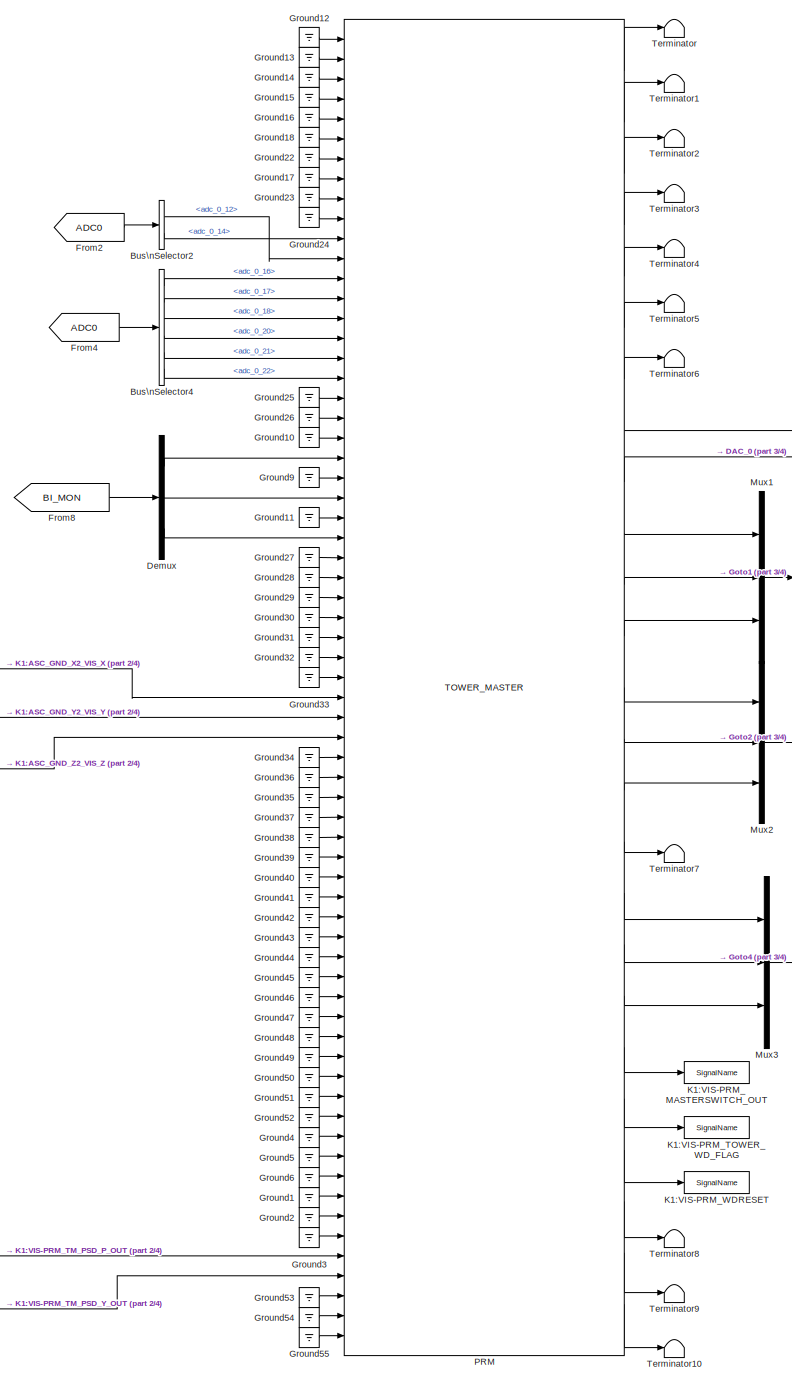
[diagram: root canvas - part 1/4, left side, full height]
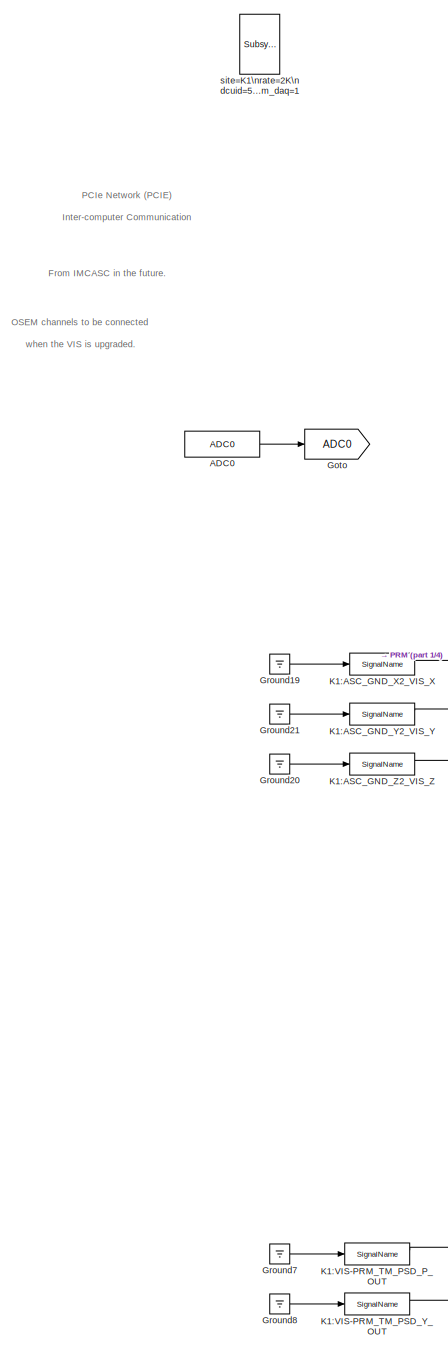
[diagram: root canvas - part 2/4, left side, full height]
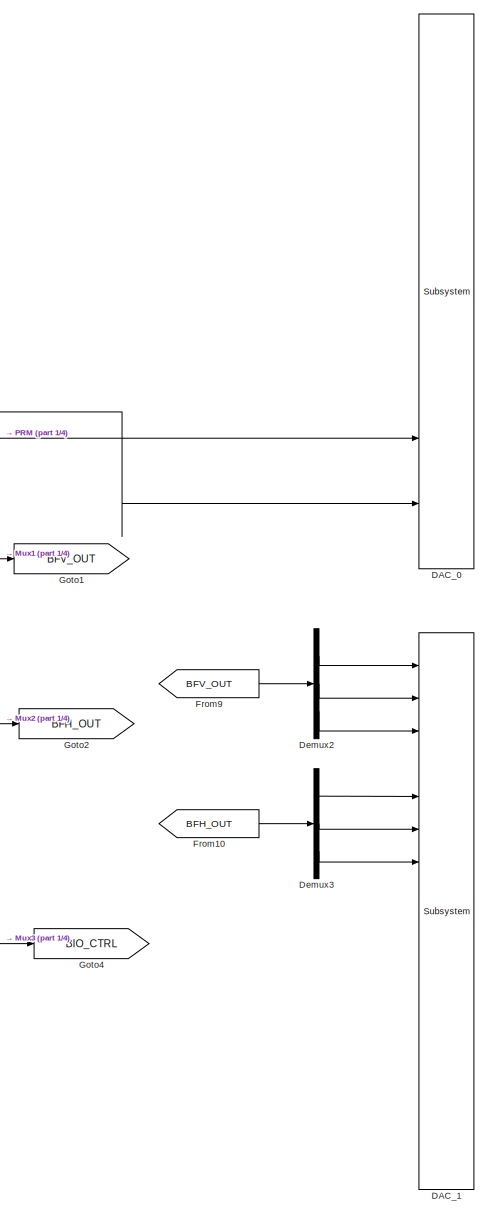
[diagram: root canvas - part 3/4, center side, full height]
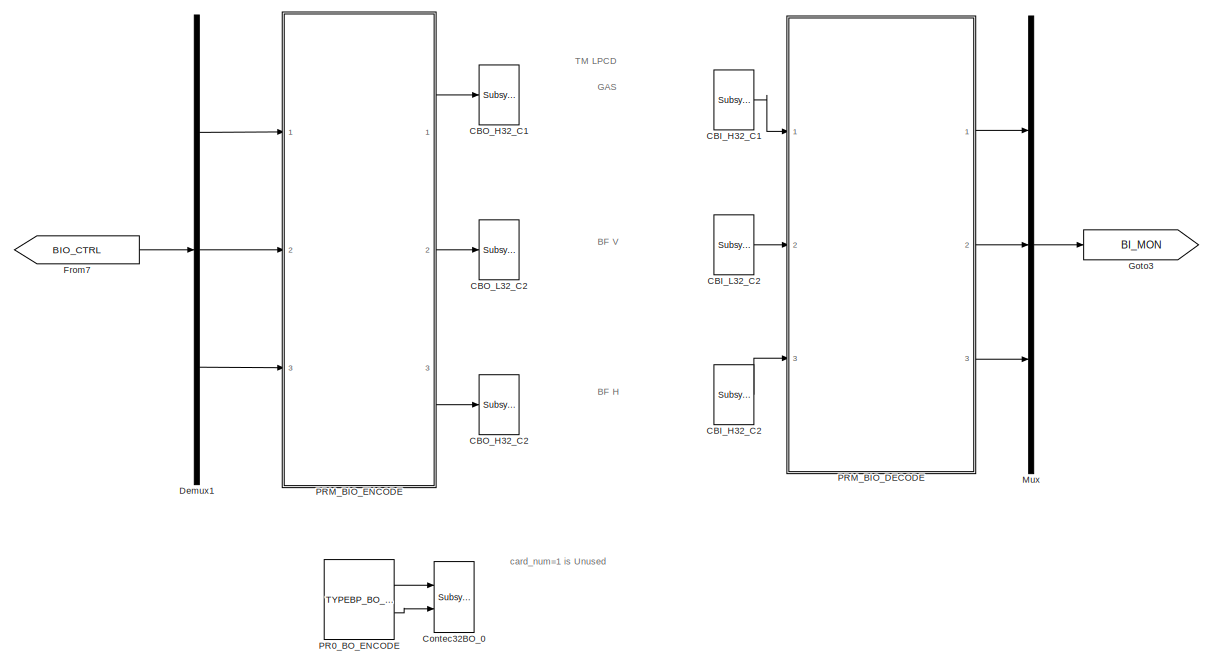
[diagram: root canvas - part 4/4, middle right region]
MODEL k1visprmt
KIND model
BLOCK [Reference] ADC0  REF=cdsAdcx0/ADC0
  AttributesFormatString = %<Description>\\n%<Tag>
  Description = type-GSC_16AI64SSA\ncard_num=0
  Ports = [0, 1]
  SID = 1559
  SourceBlock = cdsAdcx0/ADC0
  SourceType = SubSystem
  Tag = cdsAdc
BLOCK [BusSelector] Bus\nSelector2
  AttributesFormatString = %<Description>
  Description = ADC Selector
  OutputSignals = adc_0_12,adc_0_14
  Ports = [1, 2]
  SID = 1486
BLOCK [BusSelector] Bus\nSelector4
  AttributesFormatString = %<Description>
  Description = ADC Selector
  OutputSignals = adc_0_16,adc_0_17,adc_0_18,adc_0_20,adc_0_21,adc_0_22
  Ports = [1, 6]
  SID = 1488
BLOCK [Reference] CBI_H32_C1  REF=cdsCDI64/Subsystem
  AttributesFormatString = %<Tag>\\n%<Description>
  Description = card_num=3
  Ports = [0, 1]
  SID = 1563
  SourceBlock = cdsCDI64/Subsystem
  SourceType = SubSystem
  Tag = cdsCDI64
BLOCK [Reference] CBI_H32_C2  REF=cdsCDI64/Subsystem
  AttributesFormatString = %<Tag>\\n%<Description>
  Description = card_num=5
  Ports = [0, 1]
  SID = 1564
  SourceBlock = cdsCDI64/Subsystem
  SourceType = SubSystem
  Tag = cdsCDI64
BLOCK [Reference] CBI_L32_C2  REF=cdsCDI64/Subsystem
  AttributesFormatString = %<Tag>\\n%<Description>
  Description = card_num=4
  Ports = [0, 1]
  SID = 1567
  SourceBlock = cdsCDI64/Subsystem
  SourceType = SubSystem
  Tag = cdsCDI64
BLOCK [Reference] CBO_H32_C1  REF=cdsCDO64/Subsystem
  AttributesFormatString = %<Tag>\\n%<Description>
  Description = card_num=3
  Ports = [1]
  SID = 1569
  SourceBlock = cdsCDO64/Subsystem
  SourceType = SubSystem
  Tag = cdsCDO64
BLOCK [Reference] CBO_H32_C2  REF=cdsCDO64/Subsystem
  AttributesFormatString = %<Tag>\\n%<Description>
  Description = card_num=5
  Ports = [1]
  SID = 1570
  SourceBlock = cdsCDO64/Subsystem
  SourceType = SubSystem
  Tag = cdsCDO64
BLOCK [Reference] CBO_L32_C2  REF=cdsCDO64/Subsystem
  AttributesFormatString = %<Tag>\\n%<Description>
  Description = card_num=4
  Ports = [1]
  SID = 1573
  SourceBlock = cdsCDO64/Subsystem
  SourceType = SubSystem
  Tag = cdsCDO64
BLOCK [Reference] Contec32BO_0  REF=cdsCDO32/Subsystem
  AttributesFormatString = %<Tag>
  Description = Contec32 bit binary output module driver
  Ports = [2]
  SID = 1590
  SourceBlock = cdsCDO32/Subsystem
  SourceType = SubSystem
  Tag = cdsCDO32
BLOCK [Reference] DAC_0  REF=dac/Subsystem  (lib defined in slx_40ef132df75b, slx_b7657ccccc5b, +4 more)
  AttributesFormatString = %<Description>
  Description = type=GSC_16AO16,\ncard_num=0
  Ports = [16]
  SID = 1560
  SourceBlock = dac/Subsystem
  SourceType = SubSystem
BLOCK [Reference] DAC_1  REF=dac/Subsystem  (lib defined in slx_40ef132df75b, slx_b7657ccccc5b, +4 more)
  AttributesFormatString = %<Description>
  Description = type=GSC_16AO16,\ncard_num=1
  Ports = [16]
  SID = 1561
  SourceBlock = dac/Subsystem
  SourceType = SubSystem
BLOCK [Demux] Demux
  DisplayOption = bar
  Outputs = 3
  Ports = [1, 3]
  SID = 1491
BLOCK [Demux] Demux1
  DisplayOption = bar
  Outputs = 3
  Ports = [1, 3]
  SID = 1121
BLOCK [Demux] Demux2
  DisplayOption = bar
  Outputs = 3
  Ports = [1, 3]
  SID = 759
BLOCK [Demux] Demux3
  DisplayOption = bar
  Outputs = 3
  Ports = [1, 3]
  SID = 760
BLOCK [From] From10
  GotoTag = BFH_OUT
  SID = 762
BLOCK [From] From2
  GotoTag = ADC0
  SID = 1531
BLOCK [From] From4
  GotoTag = ADC0
  SID = 1533
BLOCK [From] From7
  GotoTag = BIO_CTRL
  SID = 1122
BLOCK [From] From8
  GotoTag = BI_MON
  SID = 1498
BLOCK [From] From9
  GotoTag = BFV_OUT
  SID = 770
BLOCK [Goto] Goto
  GotoTag = ADC0
  SID = 1499
BLOCK [Goto] Goto1
  GotoTag = BFV_OUT
  SID = 771
BLOCK [Goto] Goto2
  GotoTag = BFH_OUT
  SID = 772
BLOCK [Goto] Goto3
  GotoTag = BI_MON
  SID = 1123
BLOCK [Goto] Goto4
  GotoTag = BIO_CTRL
  SID = 774
BLOCK [Ground] Ground1
  SID = 2393
BLOCK [Ground] Ground10
  SID = 1501
BLOCK [Ground] Ground11
  SID = 1502
BLOCK [Ground] Ground12
  SID = 2405
BLOCK [Ground] Ground13
  SID = 2406
BLOCK [Ground] Ground14
  SID = 2407
BLOCK [Ground] Ground15
  SID = 2408
BLOCK [Ground] Ground16
  SID = 2409
BLOCK [Ground] Ground17
  SID = 2414
BLOCK [Ground] Ground18
  SID = 2410
BLOCK [Ground] Ground19
  SID = 1585
BLOCK [Ground] Ground2
  SID = 2394
BLOCK [Ground] Ground20
  SID = 1586
BLOCK [Ground] Ground21
  SID = 1587
BLOCK [Ground] Ground22
  SID = 2411
BLOCK [Ground] Ground23
  SID = 2412
BLOCK [Ground] Ground24
  SID = 2413
BLOCK [Ground] Ground25
  SID = 2415
BLOCK [Ground] Ground26
  SID = 2416
BLOCK [Ground] Ground27
  SID = 2417
BLOCK [Ground] Ground28
  SID = 2418
BLOCK [Ground] Ground29
  SID = 2419
BLOCK [Ground] Ground3
  SID = 2395
BLOCK [Ground] Ground30
  SID = 2420
BLOCK [Ground] Ground31
  SID = 2421
BLOCK [Ground] Ground32
  SID = 2422
BLOCK [Ground] Ground33
  SID = 2423
BLOCK [Ground] Ground34
  SID = 2424
BLOCK [Ground] Ground35
  SID = 2425
BLOCK [Ground] Ground36
  SID = 2426
BLOCK [Ground] Ground37
  SID = 2427
BLOCK [Ground] Ground38
  SID = 2428
BLOCK [Ground] Ground39
  SID = 2429
BLOCK [Ground] Ground4
  SID = 2396
BLOCK [Ground] Ground40
  SID = 2430
BLOCK [Ground] Ground41
  SID = 2431
BLOCK [Ground] Ground42
  SID = 2432
BLOCK [Ground] Ground43
  SID = 2433
BLOCK [Ground] Ground44
  SID = 2434
BLOCK [Ground] Ground45
  SID = 2435
BLOCK [Ground] Ground46
  SID = 2436
BLOCK [Ground] Ground47
  SID = 2437
BLOCK [Ground] Ground48
  SID = 2438
BLOCK [Ground] Ground49
  SID = 2439
BLOCK [Ground] Ground5
  SID = 2397
BLOCK [Ground] Ground50
  SID = 2440
BLOCK [Ground] Ground51
  SID = 2441
BLOCK [Ground] Ground52
  SID = 2442
BLOCK [Ground] Ground53
  SID = 2451
BLOCK [Ground] Ground54
  SID = 2452
BLOCK [Ground] Ground55
  SID = 2453
BLOCK [Ground] Ground6
  SID = 2398
BLOCK [Ground] Ground7
  SID = 2401
BLOCK [Ground] Ground8
  SID = 2402
BLOCK [Ground] Ground9
  SID = 1510
BLOCK [Reference] K1:ASC_GND_X2_VIS_X  REF=cdsIPCx/SignalName
  AttributesFormatString = %<Tag>
  Description = Inter-Process Communication via PCI Express network.
  Ports = [1, 2]
  SID = 1591
  SourceBlock = cdsIPCx/SignalName
  SourceType = SubSystem
  Tag = cdsIPCx_PCIE
BLOCK [Reference] K1:ASC_GND_Y2_VIS_Y  REF=cdsIPCx/SignalName
  AttributesFormatString = %<Tag>
  Description = Inter-Process Communication via PCI Express network.
  Ports = [1, 2]
  SID = 1592
  SourceBlock = cdsIPCx/SignalName
  SourceType = SubSystem
  Tag = cdsIPCx_PCIE
BLOCK [Reference] K1:ASC_GND_Z2_VIS_Z  REF=cdsIPCx/SignalName
  AttributesFormatString = %<Tag>
  Description = Inter-Process Communication via PCI Express network.
  Ports = [1, 2]
  SID = 1593
  SourceBlock = cdsIPCx/SignalName
  SourceType = SubSystem
  Tag = cdsIPCx_PCIE
BLOCK [Reference] K1:VIS-PRM_MASTERSWITCH_OUT  REF=cdsIPCx/SignalName
  AttributesFormatString = %<Tag>
  Description = Inter-Process Communication via Shared memory.
  Ports = [1, 2]
  SID = 2384
  SourceBlock = cdsIPCx/SignalName
  SourceType = SubSystem
  Tag = cdsIPCx_SHMEM
BLOCK [Reference] K1:VIS-PRM_TM_PSD_P_OUT  REF=cdsIPCx/SignalName
  AttributesFormatString = %<Tag>
  Description = Inter-Process Communication via Shared memory.
  Ports = [1, 2]
  SID = 2399
  SourceBlock = cdsIPCx/SignalName
  SourceType = SubSystem
  Tag = cdsIPCx_SHMEM
BLOCK [Reference] K1:VIS-PRM_TM_PSD_Y_OUT  REF=cdsIPCx/SignalName
  AttributesFormatString = %<Tag>
  Description = Inter-Process Communication via Shared memory.
  Ports = [1, 2]
  SID = 2400
  SourceBlock = cdsIPCx/SignalName
  SourceType = SubSystem
  Tag = cdsIPCx_SHMEM
BLOCK [Reference] K1:VIS-PRM_TOWER_WD_FLAG  REF=cdsIPCx/SignalName
  AttributesFormatString = %<Tag>
  Description = Inter-Process Communication via Shared memory.
  Ports = [1, 2]
  SID = 2386
  SourceBlock = cdsIPCx/SignalName
  SourceType = SubSystem
  Tag = cdsIPCx_SHMEM
BLOCK [Reference] K1:VIS-PRM_WDRESET  REF=cdsIPCx/SignalName
  AttributesFormatString = %<Tag>
  Description = Inter-Process Communication via Shared memory.
  Ports = [1, 2]
  SID = 2385
  SourceBlock = cdsIPCx/SignalName
  SourceType = SubSystem
  Tag = cdsIPCx_SHMEM
BLOCK [Mux] Mux
  DisplayOption = bar
  Inputs = 3
  Ports = [3, 1]
  SID = 1125
BLOCK [Mux] Mux1
  DisplayOption = bar
  Inputs = 3
  Ports = [3, 1]
  SID = 802
BLOCK [Mux] Mux2
  DisplayOption = bar
  Inputs = 3
  Ports = [3, 1]
  SID = 803
BLOCK [Mux] Mux3
  DisplayOption = bar
  Inputs = 3
  Ports = [3, 1]
  SID = 804
BLOCK [Reference] PR0_BO_ENCODE  REF=BO_TYPEBP_MASTER/TYPEBP_BO_ENCODE
  Ports = [0, 2]
  SID = 1594
  SourceBlock = BO_TYPEBP_MASTER/TYPEBP_BO_ENCODE
  SourceType = SubSystem
BLOCK [Reference] PRM  REF=TOWER_MASTER/TOWER_MASTER
  Ports = [66, 25]
  SID = 2404
  SourceBlock = TOWER_MASTER/TOWER_MASTER
  SourceType = SubSystem
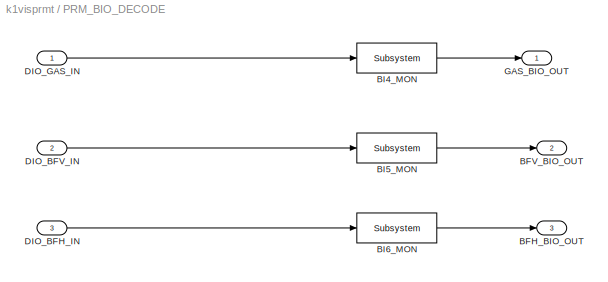
BLOCK [SubSystem] PRM_BIO_DECODE
  Ports = [3, 3]
  RequestExecContextInheritance = off
  SID = 1126
  Variant = off
BLOCK [Outport] PRM_BIO_DECODE/BFH_BIO_OUT
  IconDisplay = Port number
  Port = 3
  SID = 1144
BLOCK [Outport] PRM_BIO_DECODE/BFV_BIO_OUT
  IconDisplay = Port number
  Port = 2
  SID = 1143
BLOCK [Reference] PRM_BIO_DECODE/BI4_MON  REF=cdsEpicsOut/Subsystem
  AttributesFormatString = %<Tag>
  Description = Purpose:                                          \nOutput a FE signal to an EPICS channel.           \n                                                  \nOperation:                                        \nTakes input value and passes it to EPICS record.  \n                                                  \nUsage:                                            \nName the part with the desired EPICS...<+14ch>  <repeated x6 — deduplicated; at blocks: BI4_MON, BI5_MON, BI6_MON, DIO_3_OUT, DIO_4_OUT, DIO_4_OUT1>
  Ports = [1, 1]
  SID = 1136
  SourceBlock = cdsEpicsOut/Subsystem
  SourceType = SubSystem
  Tag = cdsEpicsOutput
BLOCK [Reference] PRM_BIO_DECODE/BI5_MON  REF=cdsEpicsOut/Subsystem
  AttributesFormatString = %<Tag>
  Ports = [1, 1]
  SID = 1137
  SourceBlock = cdsEpicsOut/Subsystem
  SourceType = SubSystem
  Tag = cdsEpicsOutput
BLOCK [Reference] PRM_BIO_DECODE/BI6_MON  REF=cdsEpicsOut/Subsystem
  AttributesFormatString = %<Tag>
  Ports = [1, 1]
  SID = 1138
  SourceBlock = cdsEpicsOut/Subsystem
  SourceType = SubSystem
  Tag = cdsEpicsOutput
BLOCK [Inport] PRM_BIO_DECODE/DIO_BFH_IN
  IconDisplay = Port number
  Port = 3
  SID = 1132
BLOCK [Inport] PRM_BIO_DECODE/DIO_BFV_IN
  IconDisplay = Port number
  Port = 2
  SID = 1131
BLOCK [Inport] PRM_BIO_DECODE/DIO_GAS_IN
  IconDisplay = Port number
  SID = 1130
BLOCK [Outport] PRM_BIO_DECODE/GAS_BIO_OUT
  IconDisplay = Port number
  SID = 1142
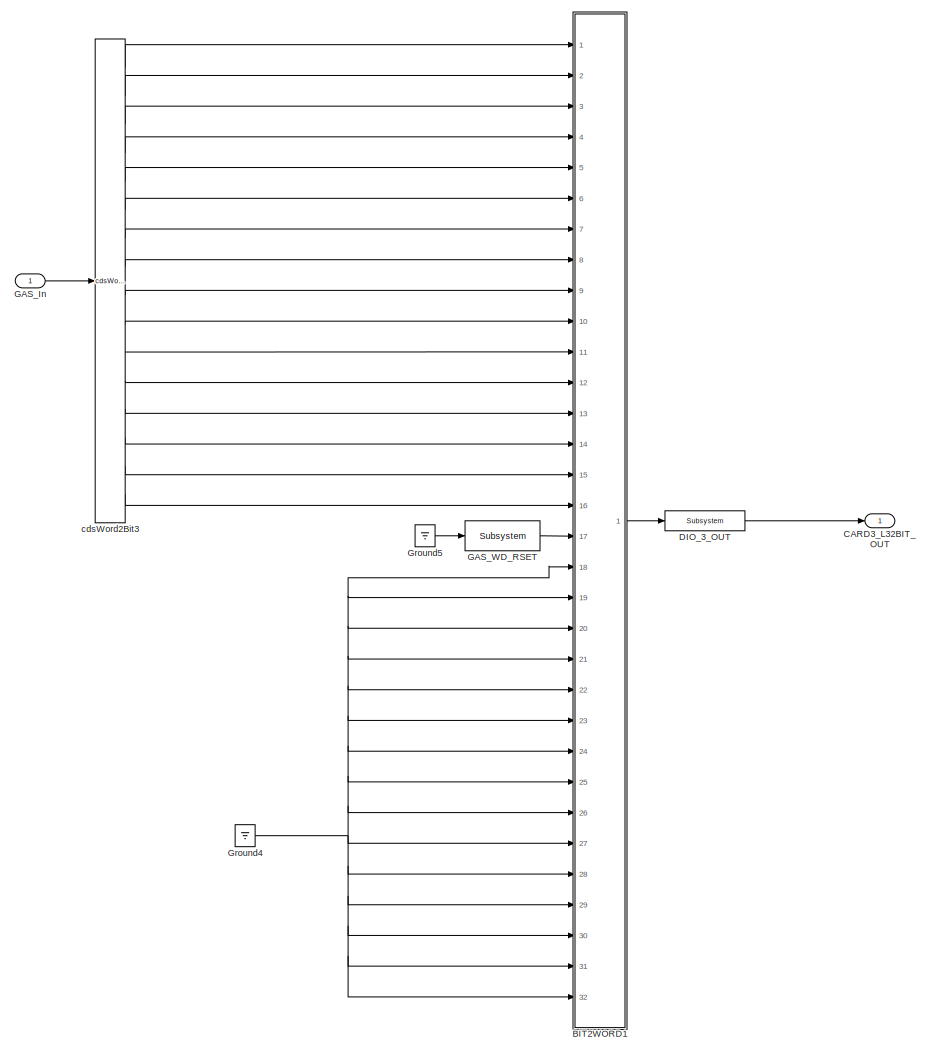
[diagram: PRM_BIO_ENCODE - part 1/3, top right region]
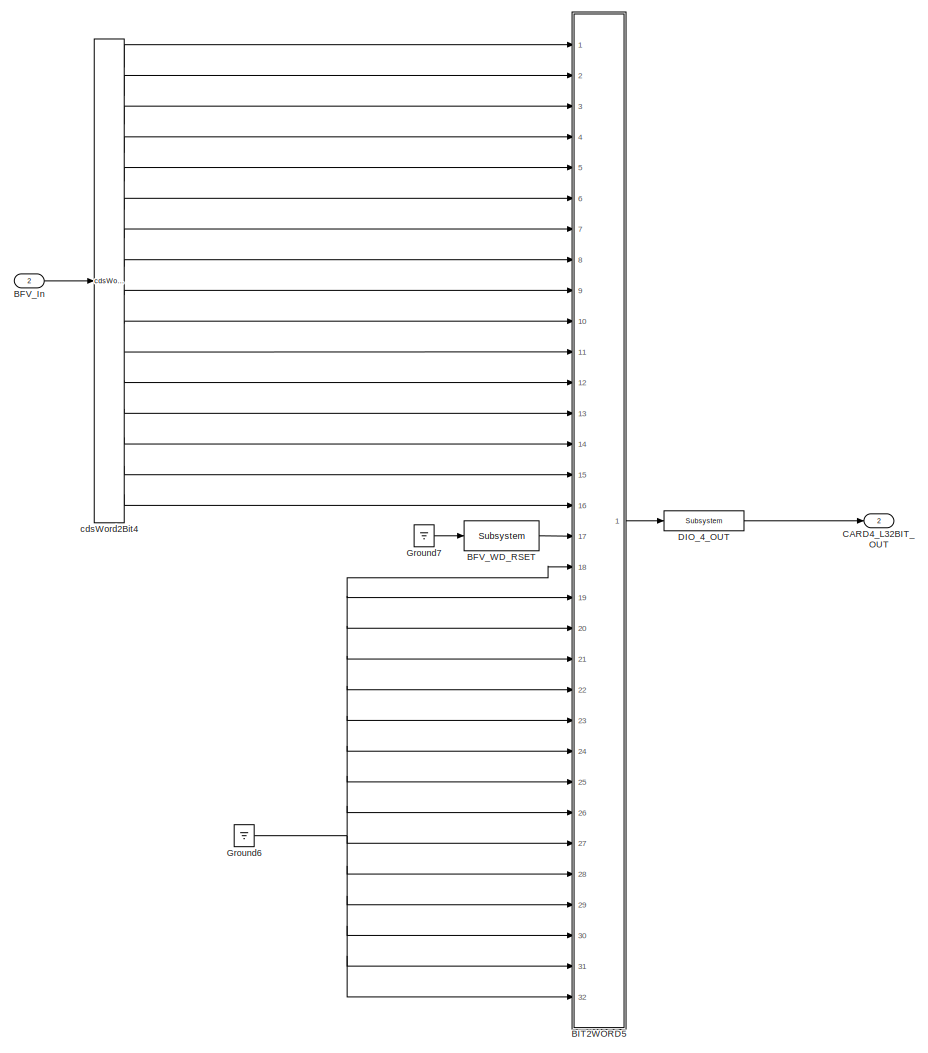
[diagram: PRM_BIO_ENCODE - part 2/3, bottom right region]
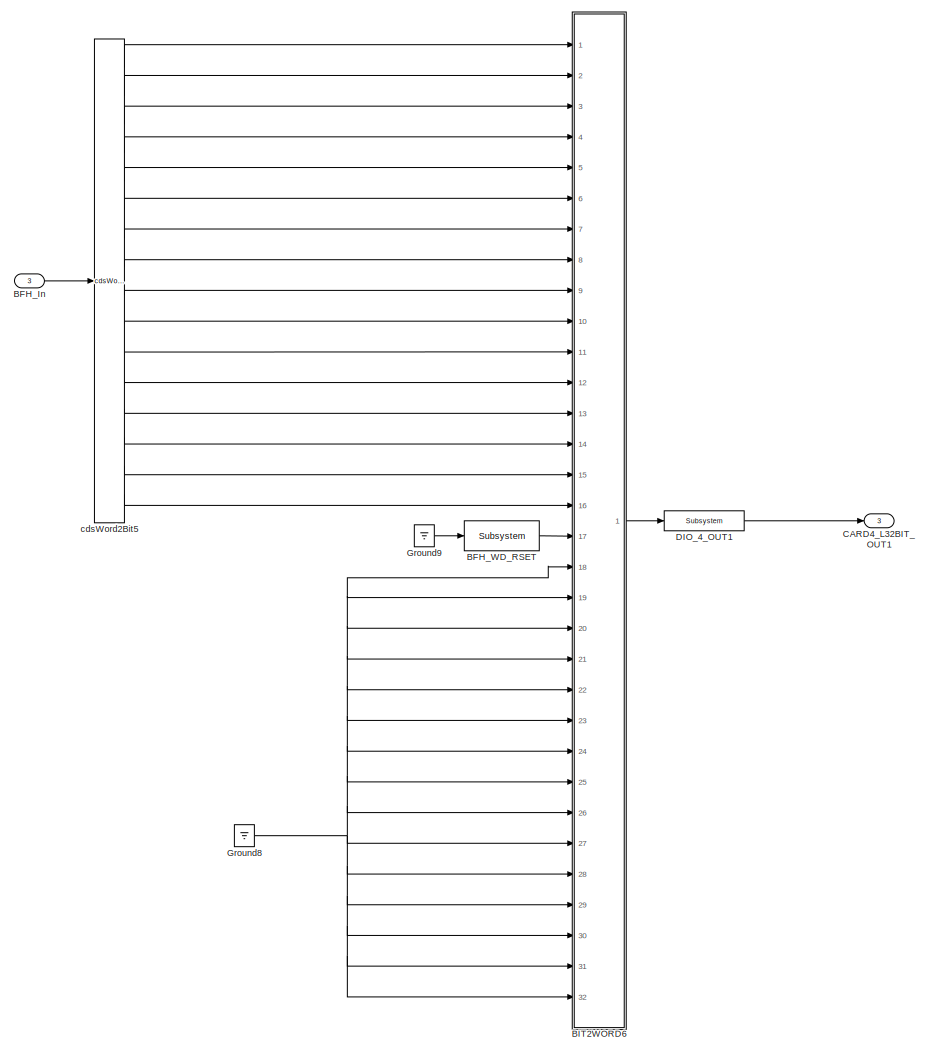
[diagram: PRM_BIO_ENCODE - part 3/3, bottom left region]
BLOCK [SubSystem] PRM_BIO_ENCODE
  Ports = [3, 3]
  RequestExecContextInheritance = off
  SID = 1145
  Variant = off
BLOCK [Inport] PRM_BIO_ENCODE/BFH_In
  IconDisplay = Port number
  Port = 3
  SID = 1151
BLOCK [Reference] PRM_BIO_ENCODE/BFH_WD_RSET  REF=cdsEpicsBinIn/Subsystem
  AttributesFormatString = %<Tag>
  Description = Purpose:                                                                            \nCreate an EPICS binary (0 or 1) input channel to the FE realtime controls.          \n                                                                                    \nOperation:                                                                          \nOutputs value from an EPICS ai record. Value is binary i...<+252ch>  <repeated x3 — deduplicated; at blocks: BFH_WD_RSET, BFV_WD_RSET, GAS_WD_RSET>
  Ports = [1, 1]
  SID = 1152
  SourceBlock = cdsEpicsBinIn/Subsystem
  SourceType = SubSystem
  Tag = cdsEpicsBinIn
BLOCK [Inport] PRM_BIO_ENCODE/BFV_In
  IconDisplay = Port number
  Port = 2
  SID = 1150
BLOCK [Reference] PRM_BIO_ENCODE/BFV_WD_RSET  REF=cdsEpicsBinIn/Subsystem
  AttributesFormatString = %<Tag>
  Ports = [1, 1]
  SID = 1153
  SourceBlock = cdsEpicsBinIn/Subsystem
  SourceType = SubSystem
  Tag = cdsEpicsBinIn
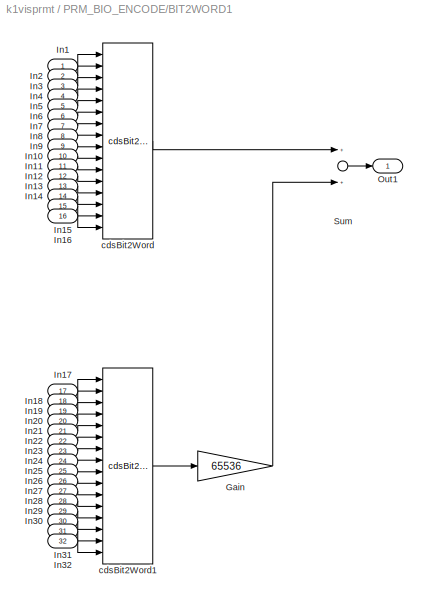
BLOCK [SubSystem] PRM_BIO_ENCODE/BIT2WORD1
  Ports = [32, 1]
  RequestExecContextInheritance = off
  SID = 1154
  Variant = off
BLOCK [Gain] PRM_BIO_ENCODE/BIT2WORD1/Gain
  Gain = 65536
  OutDataTypeStr = Inherit: Inherit via internal rule
  ParamDataTypeStr = Inherit: Inherit via internal rule
  SID = 1187
  SaturateOnIntegerOverflow = off
BLOCK [Inport] PRM_BIO_ENCODE/BIT2WORD1/In1
  IconDisplay = Port number
  SID = 1155
BLOCK [Inport] PRM_BIO_ENCODE/BIT2WORD1/In10
  IconDisplay = Port number
  Port = 10
  SID = 1164
BLOCK [Inport] PRM_BIO_ENCODE/BIT2WORD1/In11
  IconDisplay = Port number
  Port = 11
  SID = 1165
BLOCK [Inport] PRM_BIO_ENCODE/BIT2WORD1/In12
  IconDisplay = Port number
  Port = 12
  SID = 1166
BLOCK [Inport] PRM_BIO_ENCODE/BIT2WORD1/In13
  IconDisplay = Port number
  Port = 13
  SID = 1167
BLOCK [Inport] PRM_BIO_ENCODE/BIT2WORD1/In14
  IconDisplay = Port number
  Port = 14
  SID = 1168
BLOCK [Inport] PRM_BIO_ENCODE/BIT2WORD1/In15
  IconDisplay = Port number
  Port = 15
  SID = 1169
BLOCK [Inport] PRM_BIO_ENCODE/BIT2WORD1/In16
  IconDisplay = Port number
  Port = 16
  SID = 1170
BLOCK [Inport] PRM_BIO_ENCODE/BIT2WORD1/In17
  IconDisplay = Port number
  Port = 17
  SID = 1171
BLOCK [Inport] PRM_BIO_ENCODE/BIT2WORD1/In18
  IconDisplay = Port number
  Port = 18
  SID = 1172
BLOCK [Inport] PRM_BIO_ENCODE/BIT2WORD1/In19
  IconDisplay = Port number
  Port = 19
  SID = 1173
BLOCK [Inport] PRM_BIO_ENCODE/BIT2WORD1/In2
  IconDisplay = Port number
  Port = 2
  SID = 1156
BLOCK [Inport] PRM_BIO_ENCODE/BIT2WORD1/In20
  IconDisplay = Port number
  Port = 20
  SID = 1174
BLOCK [Inport] PRM_BIO_ENCODE/BIT2WORD1/In21
  IconDisplay = Port number
  Port = 21
  SID = 1175
BLOCK [Inport] PRM_BIO_ENCODE/BIT2WORD1/In22
  IconDisplay = Port number
  Port = 22
  SID = 1176
BLOCK [Inport] PRM_BIO_ENCODE/BIT2WORD1/In23
  IconDisplay = Port number
  Port = 23
  SID = 1177
BLOCK [Inport] PRM_BIO_ENCODE/BIT2WORD1/In24
  IconDisplay = Port number
  Port = 24
  SID = 1178
BLOCK [Inport] PRM_BIO_ENCODE/BIT2WORD1/In25
  IconDisplay = Port number
  Port = 25
  SID = 1179
BLOCK [Inport] PRM_BIO_ENCODE/BIT2WORD1/In26
  IconDisplay = Port number
  Port = 26
  SID = 1180
BLOCK [Inport] PRM_BIO_ENCODE/BIT2WORD1/In27
  IconDisplay = Port number
  Port = 27
  SID = 1181
BLOCK [Inport] PRM_BIO_ENCODE/BIT2WORD1/In28
  IconDisplay = Port number
  Port = 28
  SID = 1182
BLOCK [Inport] PRM_BIO_ENCODE/BIT2WORD1/In29
  IconDisplay = Port number
  Port = 29
  SID = 1183
BLOCK [Inport] PRM_BIO_ENCODE/BIT2WORD1/In3
  IconDisplay = Port number
  Port = 3
  SID = 1157
BLOCK [Inport] PRM_BIO_ENCODE/BIT2WORD1/In30
  IconDisplay = Port number
  Port = 30
  SID = 1184
BLOCK [Inport] PRM_BIO_ENCODE/BIT2WORD1/In31
  IconDisplay = Port number
  Port = 31
  SID = 1185
BLOCK [Inport] PRM_BIO_ENCODE/BIT2WORD1/In32
  IconDisplay = Port number
  Port = 32
  SID = 1186
BLOCK [Inport] PRM_BIO_ENCODE/BIT2WORD1/In4
  IconDisplay = Port number
  Port = 4
  SID = 1158
BLOCK [Inport] PRM_BIO_ENCODE/BIT2WORD1/In5
  IconDisplay = Port number
  Port = 5
  SID = 1159
BLOCK [Inport] PRM_BIO_ENCODE/BIT2WORD1/In6
  IconDisplay = Port number
  Port = 6
  SID = 1160
BLOCK [Inport] PRM_BIO_ENCODE/BIT2WORD1/In7
  IconDisplay = Port number
  Port = 7
  SID = 1161
BLOCK [Inport] PRM_BIO_ENCODE/BIT2WORD1/In8
  IconDisplay = Port number
  Port = 8
  SID = 1162
BLOCK [Inport] PRM_BIO_ENCODE/BIT2WORD1/In9
  IconDisplay = Port number
  Port = 9
  SID = 1163
BLOCK [Outport] PRM_BIO_ENCODE/BIT2WORD1/Out1
  IconDisplay = Port number
  SID = 1191
BLOCK [Sum] PRM_BIO_ENCODE/BIT2WORD1/Sum
  InputSameDT = off
  OutDataTypeStr = Inherit: Inherit via internal rule
  Ports = [2, 1]
  SID = 1188
  SaturateOnIntegerOverflow = off
BLOCK [Reference] PRM_BIO_ENCODE/BIT2WORD1/cdsBit2Word  REF=cdsBit2Word/cdsBit2Word
  AttributesFormatString = %<Tag>
  Description = Forms single 16 bit integer from 16 0/1 inputs.
  Ports = [16, 1]
  SID = 1189
  SourceBlock = cdsBit2Word/cdsBit2Word
  SourceType = SubSystem
  Tag = cdsBit2Word
BLOCK [Reference] PRM_BIO_ENCODE/BIT2WORD1/cdsBit2Word1  REF=cdsBit2Word/cdsBit2Word
  AttributesFormatString = %<Tag>
  Description = Forms single 16 bit integer from 16 0/1 inputs.
  Ports = [16, 1]
  SID = 1190
  SourceBlock = cdsBit2Word/cdsBit2Word
  SourceType = SubSystem
  Tag = cdsBit2Word
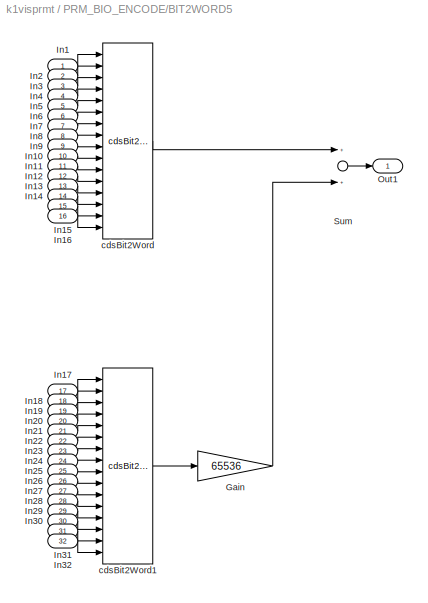
BLOCK [SubSystem] PRM_BIO_ENCODE/BIT2WORD5
  Ports = [32, 1]
  RequestExecContextInheritance = off
  SID = 1306
  Variant = off
BLOCK [Gain] PRM_BIO_ENCODE/BIT2WORD5/Gain
  Gain = 65536
  OutDataTypeStr = Inherit: Inherit via internal rule
  ParamDataTypeStr = Inherit: Inherit via internal rule
  SID = 1339
  SaturateOnIntegerOverflow = off
BLOCK [Inport] PRM_BIO_ENCODE/BIT2WORD5/In1
  IconDisplay = Port number
  SID = 1307
BLOCK [Inport] PRM_BIO_ENCODE/BIT2WORD5/In10
  IconDisplay = Port number
  Port = 10
  SID = 1316
BLOCK [Inport] PRM_BIO_ENCODE/BIT2WORD5/In11
  IconDisplay = Port number
  Port = 11
  SID = 1317
BLOCK [Inport] PRM_BIO_ENCODE/BIT2WORD5/In12
  IconDisplay = Port number
  Port = 12
  SID = 1318
BLOCK [Inport] PRM_BIO_ENCODE/BIT2WORD5/In13
  IconDisplay = Port number
  Port = 13
  SID = 1319
BLOCK [Inport] PRM_BIO_ENCODE/BIT2WORD5/In14
  IconDisplay = Port number
  Port = 14
  SID = 1320
BLOCK [Inport] PRM_BIO_ENCODE/BIT2WORD5/In15
  IconDisplay = Port number
  Port = 15
  SID = 1321
BLOCK [Inport] PRM_BIO_ENCODE/BIT2WORD5/In16
  IconDisplay = Port number
  Port = 16
  SID = 1322
BLOCK [Inport] PRM_BIO_ENCODE/BIT2WORD5/In17
  IconDisplay = Port number
  Port = 17
  SID = 1323
BLOCK [Inport] PRM_BIO_ENCODE/BIT2WORD5/In18
  IconDisplay = Port number
  Port = 18
  SID = 1324
BLOCK [Inport] PRM_BIO_ENCODE/BIT2WORD5/In19
  IconDisplay = Port number
  Port = 19
  SID = 1325
BLOCK [Inport] PRM_BIO_ENCODE/BIT2WORD5/In2
  IconDisplay = Port number
  Port = 2
  SID = 1308
BLOCK [Inport] PRM_BIO_ENCODE/BIT2WORD5/In20
  IconDisplay = Port number
  Port = 20
  SID = 1326
BLOCK [Inport] PRM_BIO_ENCODE/BIT2WORD5/In21
  IconDisplay = Port number
  Port = 21
  SID = 1327
BLOCK [Inport] PRM_BIO_ENCODE/BIT2WORD5/In22
  IconDisplay = Port number
  Port = 22
  SID = 1328
BLOCK [Inport] PRM_BIO_ENCODE/BIT2WORD5/In23
  IconDisplay = Port number
  Port = 23
  SID = 1329
BLOCK [Inport] PRM_BIO_ENCODE/BIT2WORD5/In24
  IconDisplay = Port number
  Port = 24
  SID = 1330
BLOCK [Inport] PRM_BIO_ENCODE/BIT2WORD5/In25
  IconDisplay = Port number
  Port = 25
  SID = 1331
BLOCK [Inport] PRM_BIO_ENCODE/BIT2WORD5/In26
  IconDisplay = Port number
  Port = 26
  SID = 1332
BLOCK [Inport] PRM_BIO_ENCODE/BIT2WORD5/In27
  IconDisplay = Port number
  Port = 27
  SID = 1333
BLOCK [Inport] PRM_BIO_ENCODE/BIT2WORD5/In28
  IconDisplay = Port number
  Port = 28
  SID = 1334
BLOCK [Inport] PRM_BIO_ENCODE/BIT2WORD5/In29
  IconDisplay = Port number
  Port = 29
  SID = 1335
BLOCK [Inport] PRM_BIO_ENCODE/BIT2WORD5/In3
  IconDisplay = Port number
  Port = 3
  SID = 1309
BLOCK [Inport] PRM_BIO_ENCODE/BIT2WORD5/In30
  IconDisplay = Port number
  Port = 30
  SID = 1336
BLOCK [Inport] PRM_BIO_ENCODE/BIT2WORD5/In31
  IconDisplay = Port number
  Port = 31
  SID = 1337
BLOCK [Inport] PRM_BIO_ENCODE/BIT2WORD5/In32
  IconDisplay = Port number
  Port = 32
  SID = 1338
BLOCK [Inport] PRM_BIO_ENCODE/BIT2WORD5/In4
  IconDisplay = Port number
  Port = 4
  SID = 1310
BLOCK [Inport] PRM_BIO_ENCODE/BIT2WORD5/In5
  IconDisplay = Port number
  Port = 5
  SID = 1311
BLOCK [Inport] PRM_BIO_ENCODE/BIT2WORD5/In6
  IconDisplay = Port number
  Port = 6
  SID = 1312
BLOCK [Inport] PRM_BIO_ENCODE/BIT2WORD5/In7
  IconDisplay = Port number
  Port = 7
  SID = 1313
BLOCK [Inport] PRM_BIO_ENCODE/BIT2WORD5/In8
  IconDisplay = Port number
  Port = 8
  SID = 1314
BLOCK [Inport] PRM_BIO_ENCODE/BIT2WORD5/In9
  IconDisplay = Port number
  Port = 9
  SID = 1315
BLOCK [Outport] PRM_BIO_ENCODE/BIT2WORD5/Out1
  IconDisplay = Port number
  SID = 1343
BLOCK [Sum] PRM_BIO_ENCODE/BIT2WORD5/Sum
  InputSameDT = off
  OutDataTypeStr = Inherit: Inherit via internal rule
  Ports = [2, 1]
  SID = 1340
  SaturateOnIntegerOverflow = off
BLOCK [Reference] PRM_BIO_ENCODE/BIT2WORD5/cdsBit2Word  REF=cdsBit2Word/cdsBit2Word
  AttributesFormatString = %<Tag>
  Description = Forms single 16 bit integer from 16 0/1 inputs.
  Ports = [16, 1]
  SID = 1341
  SourceBlock = cdsBit2Word/cdsBit2Word
  SourceType = SubSystem
  Tag = cdsBit2Word
BLOCK [Reference] PRM_BIO_ENCODE/BIT2WORD5/cdsBit2Word1  REF=cdsBit2Word/cdsBit2Word
  AttributesFormatString = %<Tag>
  Description = Forms single 16 bit integer from 16 0/1 inputs.
  Ports = [16, 1]
  SID = 1342
  SourceBlock = cdsBit2Word/cdsBit2Word
  SourceType = SubSystem
  Tag = cdsBit2Word
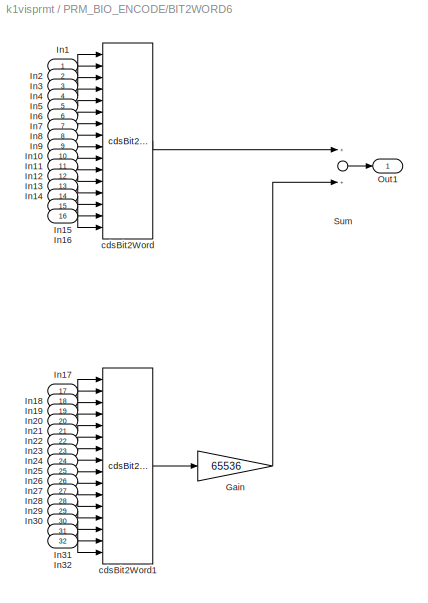
BLOCK [SubSystem] PRM_BIO_ENCODE/BIT2WORD6
  Ports = [32, 1]
  RequestExecContextInheritance = off
  SID = 1344
  Variant = off
BLOCK [Gain] PRM_BIO_ENCODE/BIT2WORD6/Gain
  Gain = 65536
  OutDataTypeStr = Inherit: Inherit via internal rule
  ParamDataTypeStr = Inherit: Inherit via internal rule
  SID = 1377
  SaturateOnIntegerOverflow = off
BLOCK [Inport] PRM_BIO_ENCODE/BIT2WORD6/In1
  IconDisplay = Port number
  SID = 1345
BLOCK [Inport] PRM_BIO_ENCODE/BIT2WORD6/In10
  IconDisplay = Port number
  Port = 10
  SID = 1354
BLOCK [Inport] PRM_BIO_ENCODE/BIT2WORD6/In11
  IconDisplay = Port number
  Port = 11
  SID = 1355
BLOCK [Inport] PRM_BIO_ENCODE/BIT2WORD6/In12
  IconDisplay = Port number
  Port = 12
  SID = 1356
BLOCK [Inport] PRM_BIO_ENCODE/BIT2WORD6/In13
  IconDisplay = Port number
  Port = 13
  SID = 1357
BLOCK [Inport] PRM_BIO_ENCODE/BIT2WORD6/In14
  IconDisplay = Port number
  Port = 14
  SID = 1358
BLOCK [Inport] PRM_BIO_ENCODE/BIT2WORD6/In15
  IconDisplay = Port number
  Port = 15
  SID = 1359
BLOCK [Inport] PRM_BIO_ENCODE/BIT2WORD6/In16
  IconDisplay = Port number
  Port = 16
  SID = 1360
BLOCK [Inport] PRM_BIO_ENCODE/BIT2WORD6/In17
  IconDisplay = Port number
  Port = 17
  SID = 1361
BLOCK [Inport] PRM_BIO_ENCODE/BIT2WORD6/In18
  IconDisplay = Port number
  Port = 18
  SID = 1362
BLOCK [Inport] PRM_BIO_ENCODE/BIT2WORD6/In19
  IconDisplay = Port number
  Port = 19
  SID = 1363
BLOCK [Inport] PRM_BIO_ENCODE/BIT2WORD6/In2
  IconDisplay = Port number
  Port = 2
  SID = 1346
BLOCK [Inport] PRM_BIO_ENCODE/BIT2WORD6/In20
  IconDisplay = Port number
  Port = 20
  SID = 1364
BLOCK [Inport] PRM_BIO_ENCODE/BIT2WORD6/In21
  IconDisplay = Port number
  Port = 21
  SID = 1365
BLOCK [Inport] PRM_BIO_ENCODE/BIT2WORD6/In22
  IconDisplay = Port number
  Port = 22
  SID = 1366
BLOCK [Inport] PRM_BIO_ENCODE/BIT2WORD6/In23
  IconDisplay = Port number
  Port = 23
  SID = 1367
BLOCK [Inport] PRM_BIO_ENCODE/BIT2WORD6/In24
  IconDisplay = Port number
  Port = 24
  SID = 1368
BLOCK [Inport] PRM_BIO_ENCODE/BIT2WORD6/In25
  IconDisplay = Port number
  Port = 25
  SID = 1369
BLOCK [Inport] PRM_BIO_ENCODE/BIT2WORD6/In26
  IconDisplay = Port number
  Port = 26
  SID = 1370
BLOCK [Inport] PRM_BIO_ENCODE/BIT2WORD6/In27
  IconDisplay = Port number
  Port = 27
  SID = 1371
BLOCK [Inport] PRM_BIO_ENCODE/BIT2WORD6/In28
  IconDisplay = Port number
  Port = 28
  SID = 1372
BLOCK [Inport] PRM_BIO_ENCODE/BIT2WORD6/In29
  IconDisplay = Port number
  Port = 29
  SID = 1373
BLOCK [Inport] PRM_BIO_ENCODE/BIT2WORD6/In3
  IconDisplay = Port number
  Port = 3
  SID = 1347
BLOCK [Inport] PRM_BIO_ENCODE/BIT2WORD6/In30
  IconDisplay = Port number
  Port = 30
  SID = 1374
BLOCK [Inport] PRM_BIO_ENCODE/BIT2WORD6/In31
  IconDisplay = Port number
  Port = 31
  SID = 1375
BLOCK [Inport] PRM_BIO_ENCODE/BIT2WORD6/In32
  IconDisplay = Port number
  Port = 32
  SID = 1376
BLOCK [Inport] PRM_BIO_ENCODE/BIT2WORD6/In4
  IconDisplay = Port number
  Port = 4
  SID = 1348
BLOCK [Inport] PRM_BIO_ENCODE/BIT2WORD6/In5
  IconDisplay = Port number
  Port = 5
  SID = 1349
BLOCK [Inport] PRM_BIO_ENCODE/BIT2WORD6/In6
  IconDisplay = Port number
  Port = 6
  SID = 1350
BLOCK [Inport] PRM_BIO_ENCODE/BIT2WORD6/In7
  IconDisplay = Port number
  Port = 7
  SID = 1351
BLOCK [Inport] PRM_BIO_ENCODE/BIT2WORD6/In8
  IconDisplay = Port number
  Port = 8
  SID = 1352
BLOCK [Inport] PRM_BIO_ENCODE/BIT2WORD6/In9
  IconDisplay = Port number
  Port = 9
  SID = 1353
BLOCK [Outport] PRM_BIO_ENCODE/BIT2WORD6/Out1
  IconDisplay = Port number
  SID = 1381
BLOCK [Sum] PRM_BIO_ENCODE/BIT2WORD6/Sum
  InputSameDT = off
  OutDataTypeStr = Inherit: Inherit via internal rule
  Ports = [2, 1]
  SID = 1378
  SaturateOnIntegerOverflow = off
BLOCK [Reference] PRM_BIO_ENCODE/BIT2WORD6/cdsBit2Word  REF=cdsBit2Word/cdsBit2Word
  AttributesFormatString = %<Tag>
  Description = Forms single 16 bit integer from 16 0/1 inputs.
  Ports = [16, 1]
  SID = 1379
  SourceBlock = cdsBit2Word/cdsBit2Word
  SourceType = SubSystem
  Tag = cdsBit2Word
BLOCK [Reference] PRM_BIO_ENCODE/BIT2WORD6/cdsBit2Word1  REF=cdsBit2Word/cdsBit2Word
  AttributesFormatString = %<Tag>
  Description = Forms single 16 bit integer from 16 0/1 inputs.
  Ports = [16, 1]
  SID = 1380
  SourceBlock = cdsBit2Word/cdsBit2Word
  SourceType = SubSystem
  Tag = cdsBit2Word
BLOCK [Outport] PRM_BIO_ENCODE/CARD3_L32BIT_OUT
  IconDisplay = Port number
  SID = 1413
BLOCK [Outport] PRM_BIO_ENCODE/CARD4_L32BIT_OUT
  IconDisplay = Port number
  Port = 2
  SID = 1414
BLOCK [Outport] PRM_BIO_ENCODE/CARD4_L32BIT_OUT1
  IconDisplay = Port number
  Port = 3
  SID = 1415
BLOCK [Reference] PRM_BIO_ENCODE/DIO_3_OUT  REF=cdsEpicsOut/Subsystem
  AttributesFormatString = %<Tag>
  Ports = [1, 1]
  SID = 1385
  SourceBlock = cdsEpicsOut/Subsystem
  SourceType = SubSystem
  Tag = cdsEpicsOutput
BLOCK [Reference] PRM_BIO_ENCODE/DIO_4_OUT  REF=cdsEpicsOut/Subsystem
  AttributesFormatString = %<Tag>
  Ports = [1, 1]
  SID = 1386
  SourceBlock = cdsEpicsOut/Subsystem
  SourceType = SubSystem
  Tag = cdsEpicsOutput
BLOCK [Reference] PRM_BIO_ENCODE/DIO_4_OUT1  REF=cdsEpicsOut/Subsystem
  AttributesFormatString = %<Tag>
  Ports = [1, 1]
  SID = 1387
  SourceBlock = cdsEpicsOut/Subsystem
  SourceType = SubSystem
  Tag = cdsEpicsOutput
BLOCK [Inport] PRM_BIO_ENCODE/GAS_In
  IconDisplay = Port number
  SID = 1149
BLOCK [Reference] PRM_BIO_ENCODE/GAS_WD_RSET  REF=cdsEpicsBinIn/Subsystem
  AttributesFormatString = %<Tag>
  Ports = [1, 1]
  SID = 1388
  SourceBlock = cdsEpicsBinIn/Subsystem
  SourceType = SubSystem
  Tag = cdsEpicsBinIn
BLOCK [Ground] PRM_BIO_ENCODE/Ground4
  SID = 1393
BLOCK [Ground] PRM_BIO_ENCODE/Ground5
  SID = 1394
BLOCK [Ground] PRM_BIO_ENCODE/Ground6
  SID = 1395
BLOCK [Ground] PRM_BIO_ENCODE/Ground7
  SID = 1398
BLOCK [Ground] PRM_BIO_ENCODE/Ground8
  SID = 1399
BLOCK [Ground] PRM_BIO_ENCODE/Ground9
  SID = 1400
BLOCK [Reference] PRM_BIO_ENCODE/cdsWord2Bit3  REF=cdsWord2Bit/cdsWord2Bit
  AttributesFormatString = cdsWord2Bit
  Description = Generate 16 0/1 outputs from single 16-bit integer input
  Ports = [1, 16]
  SID = 1407
  SourceBlock = cdsWord2Bit/cdsWord2Bit
  SourceType = SubSystem
  Tag = cdsWord2Bit
BLOCK [Reference] PRM_BIO_ENCODE/cdsWord2Bit4  REF=cdsWord2Bit/cdsWord2Bit
  AttributesFormatString = cdsWord2Bit
  Description = Generate 16 0/1 outputs from single 16-bit integer input
  Ports = [1, 16]
  SID = 1408
  SourceBlock = cdsWord2Bit/cdsWord2Bit
  SourceType = SubSystem
  Tag = cdsWord2Bit
BLOCK [Reference] PRM_BIO_ENCODE/cdsWord2Bit5  REF=cdsWord2Bit/cdsWord2Bit
  AttributesFormatString = cdsWord2Bit
  Description = Generate 16 0/1 outputs from single 16-bit integer input
  Ports = [1, 16]
  SID = 1409
  SourceBlock = cdsWord2Bit/cdsWord2Bit
  SourceType = SubSystem
  Tag = cdsWord2Bit
BLOCK [Terminator] Terminator
  SID = 2443
BLOCK [Terminator] Terminator1
  SID = 2444
BLOCK [Terminator] Terminator10
  SID = 2456
BLOCK [Terminator] Terminator2
  SID = 2445
BLOCK [Terminator] Terminator3
  SID = 2446
BLOCK [Terminator] Terminator4
  SID = 2447
BLOCK [Terminator] Terminator5
  SID = 2448
BLOCK [Terminator] Terminator6
  SID = 2449
BLOCK [Terminator] Terminator7
  SID = 2450
BLOCK [Terminator] Terminator8
  SID = 2454
BLOCK [Terminator] Terminator9
  SID = 2455
BLOCK [Reference] site=K1\nrate=2K\ndcuid=55\nhost=k1prm\nspecific_cpu=2\nadcSlave=1\nshmem_daq=1  REF=cdsParameters/Subsystem
  AttributesFormatString = %<Tag>
  Description = Purpose:                                                                                                                                                                                                                                \nProvide system parameters to the FE code generator to properly configure the generated EPICS names, rep rate of the FE controller, and the Data Acquisition node ID fo...<+2934ch>
  Ports = []
  SID = 336
  SourceBlock = cdsParameters/Subsystem
  SourceType = SubSystem
  Tag = cdsParameters
ANNOTATION (root): \n \n TM LPCD
ANNOTATION (root): \n \n card_num=1 is Unused
ANNOTATION (root): \n \n GAS
ANNOTATION (root): \n \n BF H
ANNOTATION (root): \n \n BF V
ANNOTATION (root): \n \n From IMCASC in the future.
ANNOTATION (root): \n \n OSEM channels to be connected \n when the VIS is upgraded.
ANNOTATION (root): \n \n PCIe Network (PCIE) \n Inter-computer Communication
LINE ADC0:1 -> Goto:1
LINE Bus\nSelector2:1 -> PRM:12
LINE Bus\nSelector2:2 -> PRM:11
LINE Bus\nSelector4:1 -> PRM:13
LINE Bus\nSelector4:2 -> PRM:14
LINE Bus\nSelector4:3 -> PRM:15
LINE Bus\nSelector4:4 -> PRM:16
LINE Bus\nSelector4:5 -> PRM:17
LINE Bus\nSelector4:6 -> PRM:18
LINE CBI_H32_C1:1 -> PRM_BIO_DECODE:1
LINE CBI_H32_C2:1 -> PRM_BIO_DECODE:3
LINE CBI_L32_C2:1 -> PRM_BIO_DECODE:2
LINE Demux1:1 -> PRM_BIO_ENCODE:1
LINE Demux1:2 -> PRM_BIO_ENCODE:2
LINE Demux1:3 -> PRM_BIO_ENCODE:3
LINE Demux2:1 -> DAC_1:1
LINE Demux2:2 -> DAC_1:2
LINE Demux2:3 -> DAC_1:3
LINE Demux3:1 -> DAC_1:5
LINE Demux3:2 -> DAC_1:6
LINE Demux3:3 -> DAC_1:7
LINE Demux:1 -> PRM:22
LINE Demux:2 -> PRM:24
LINE Demux:3 -> PRM:26
LINE From10:1 -> Demux3:1
LINE From2:1 -> Bus\nSelector2:1
LINE From4:1 -> Bus\nSelector4:1
LINE From7:1 -> Demux1:1
LINE From8:1 -> Demux:1
LINE From9:1 -> Demux2:1
LINE Ground10:1 -> PRM:21
LINE Ground11:1 -> PRM:25
LINE Ground12:1 -> PRM:1
LINE Ground13:1 -> PRM:2
LINE Ground14:1 -> PRM:3
LINE Ground15:1 -> PRM:4
LINE Ground16:1 -> PRM:5
LINE Ground17:1 -> PRM:8
LINE Ground18:1 -> PRM:6
LINE Ground19:1 -> K1:ASC_GND_X2_VIS_X:1
LINE Ground1:1 -> PRM:59
LINE Ground20:1 -> K1:ASC_GND_Z2_VIS_Z:1
LINE Ground21:1 -> K1:ASC_GND_Y2_VIS_Y:1
LINE Ground22:1 -> PRM:7
LINE Ground23:1 -> PRM:9
LINE Ground24:1 -> PRM:10
LINE Ground25:1 -> PRM:19
LINE Ground26:1 -> PRM:20
LINE Ground27:1 -> PRM:27
LINE Ground28:1 -> PRM:28
LINE Ground29:1 -> PRM:29
LINE Ground2:1 -> PRM:60
LINE Ground30:1 -> PRM:30
LINE Ground31:1 -> PRM:31
LINE Ground32:1 -> PRM:32
LINE Ground33:1 -> PRM:33
LINE Ground34:1 -> PRM:37
LINE Ground35:1 -> PRM:39
LINE Ground36:1 -> PRM:38
LINE Ground37:1 -> PRM:40
LINE Ground38:1 -> PRM:41
LINE Ground39:1 -> PRM:42
LINE Ground3:1 -> PRM:61
LINE Ground40:1 -> PRM:43
LINE Ground41:1 -> PRM:44
LINE Ground42:1 -> PRM:45
LINE Ground43:1 -> PRM:46
LINE Ground44:1 -> PRM:47
LINE Ground45:1 -> PRM:48
LINE Ground46:1 -> PRM:49
LINE Ground47:1 -> PRM:50
LINE Ground48:1 -> PRM:51
LINE Ground49:1 -> PRM:52
LINE Ground4:1 -> PRM:56
LINE Ground50:1 -> PRM:53
LINE Ground51:1 -> PRM:54
LINE Ground52:1 -> PRM:55
LINE Ground53:1 -> PRM:64
LINE Ground54:1 -> PRM:65
LINE Ground55:1 -> PRM:66
LINE Ground5:1 -> PRM:57
LINE Ground6:1 -> PRM:58
LINE Ground7:1 -> K1:VIS-PRM_TM_PSD_P_OUT:1
LINE Ground8:1 -> K1:VIS-PRM_TM_PSD_Y_OUT:1
LINE Ground9:1 -> PRM:23
LINE K1:ASC_GND_X2_VIS_X:1 -> PRM:34
LINE K1:ASC_GND_Y2_VIS_Y:1 -> PRM:35
LINE K1:ASC_GND_Z2_VIS_Z:1 -> PRM:36
LINE K1:VIS-PRM_TM_PSD_P_OUT:1 -> PRM:62
LINE K1:VIS-PRM_TM_PSD_Y_OUT:1 -> PRM:63
LINE Mux1:1 -> Goto1:1
LINE Mux2:1 -> Goto2:1
LINE Mux3:1 -> Goto4:1
LINE Mux:1 -> Goto3:1
LINE PR0_BO_ENCODE:1 -> Contec32BO_0:1
LINE PR0_BO_ENCODE:2 -> Contec32BO_0:2
LINE PRM:1 -> Terminator:1
LINE PRM:10 -> Mux1:1
LINE PRM:11 -> Mux1:2
LINE PRM:12 -> Mux1:3
LINE PRM:13 -> Mux2:1
LINE PRM:14 -> Mux2:2
LINE PRM:15 -> Mux2:3
LINE PRM:16 -> Terminator7:1
LINE PRM:17 -> Mux3:1
LINE PRM:18 -> Mux3:2
LINE PRM:19 -> Mux3:3
LINE PRM:2 -> Terminator1:1
LINE PRM:20 -> K1:VIS-PRM_MASTERSWITCH_OUT:1
LINE PRM:21 -> K1:VIS-PRM_TOWER_WD_FLAG:1
LINE PRM:22 -> K1:VIS-PRM_WDRESET:1
LINE PRM:23 -> Terminator8:1
LINE PRM:24 -> Terminator9:1
LINE PRM:25 -> Terminator10:1
LINE PRM:3 -> Terminator2:1
LINE PRM:4 -> Terminator3:1
LINE PRM:5 -> Terminator4:1
LINE PRM:6 -> Terminator5:1
LINE PRM:7 -> Terminator6:1
LINE PRM:8 -> DAC_0:15
LINE PRM:9 -> DAC_0:13
LINE PRM_BIO_DECODE/BI4_MON:1 -> PRM_BIO_DECODE/GAS_BIO_OUT:1
LINE PRM_BIO_DECODE/BI5_MON:1 -> PRM_BIO_DECODE/BFV_BIO_OUT:1
LINE PRM_BIO_DECODE/BI6_MON:1 -> PRM_BIO_DECODE/BFH_BIO_OUT:1
LINE PRM_BIO_DECODE/DIO_BFH_IN:1 -> PRM_BIO_DECODE/BI6_MON:1
LINE PRM_BIO_DECODE/DIO_BFV_IN:1 -> PRM_BIO_DECODE/BI5_MON:1
LINE PRM_BIO_DECODE/DIO_GAS_IN:1 -> PRM_BIO_DECODE/BI4_MON:1
LINE PRM_BIO_DECODE:1 -> Mux:1
LINE PRM_BIO_DECODE:2 -> Mux:2
LINE PRM_BIO_DECODE:3 -> Mux:3
LINE PRM_BIO_ENCODE/BFH_In:1 -> PRM_BIO_ENCODE/cdsWord2Bit5:1
LINE PRM_BIO_ENCODE/BFH_WD_RSET:1 -> PRM_BIO_ENCODE/BIT2WORD6:17
LINE PRM_BIO_ENCODE/BFV_In:1 -> PRM_BIO_ENCODE/cdsWord2Bit4:1
LINE PRM_BIO_ENCODE/BFV_WD_RSET:1 -> PRM_BIO_ENCODE/BIT2WORD5:17
LINE PRM_BIO_ENCODE/BIT2WORD1/Gain:1 -> PRM_BIO_ENCODE/BIT2WORD1/Sum:2
LINE PRM_BIO_ENCODE/BIT2WORD1/In10:1 -> PRM_BIO_ENCODE/BIT2WORD1/cdsBit2Word:10
LINE PRM_BIO_ENCODE/BIT2WORD1/In11:1 -> PRM_BIO_ENCODE/BIT2WORD1/cdsBit2Word:11
LINE PRM_BIO_ENCODE/BIT2WORD1/In12:1 -> PRM_BIO_ENCODE/BIT2WORD1/cdsBit2Word:12
LINE PRM_BIO_ENCODE/BIT2WORD1/In13:1 -> PRM_BIO_ENCODE/BIT2WORD1/cdsBit2Word:13
LINE PRM_BIO_ENCODE/BIT2WORD1/In14:1 -> PRM_BIO_ENCODE/BIT2WORD1/cdsBit2Word:14
LINE PRM_BIO_ENCODE/BIT2WORD1/In15:1 -> PRM_BIO_ENCODE/BIT2WORD1/cdsBit2Word:15
LINE PRM_BIO_ENCODE/BIT2WORD1/In16:1 -> PRM_BIO_ENCODE/BIT2WORD1/cdsBit2Word:16
LINE PRM_BIO_ENCODE/BIT2WORD1/In17:1 -> PRM_BIO_ENCODE/BIT2WORD1/cdsBit2Word1:1
LINE PRM_BIO_ENCODE/BIT2WORD1/In18:1 -> PRM_BIO_ENCODE/BIT2WORD1/cdsBit2Word1:2
LINE PRM_BIO_ENCODE/BIT2WORD1/In19:1 -> PRM_BIO_ENCODE/BIT2WORD1/cdsBit2Word1:3
LINE PRM_BIO_ENCODE/BIT2WORD1/In1:1 -> PRM_BIO_ENCODE/BIT2WORD1/cdsBit2Word:1
LINE PRM_BIO_ENCODE/BIT2WORD1/In20:1 -> PRM_BIO_ENCODE/BIT2WORD1/cdsBit2Word1:4
LINE PRM_BIO_ENCODE/BIT2WORD1/In21:1 -> PRM_BIO_ENCODE/BIT2WORD1/cdsBit2Word1:5
LINE PRM_BIO_ENCODE/BIT2WORD1/In22:1 -> PRM_BIO_ENCODE/BIT2WORD1/cdsBit2Word1:6
LINE PRM_BIO_ENCODE/BIT2WORD1/In23:1 -> PRM_BIO_ENCODE/BIT2WORD1/cdsBit2Word1:7
LINE PRM_BIO_ENCODE/BIT2WORD1/In24:1 -> PRM_BIO_ENCODE/BIT2WORD1/cdsBit2Word1:8
LINE PRM_BIO_ENCODE/BIT2WORD1/In25:1 -> PRM_BIO_ENCODE/BIT2WORD1/cdsBit2Word1:9
LINE PRM_BIO_ENCODE/BIT2WORD1/In26:1 -> PRM_BIO_ENCODE/BIT2WORD1/cdsBit2Word1:10
LINE PRM_BIO_ENCODE/BIT2WORD1/In27:1 -> PRM_BIO_ENCODE/BIT2WORD1/cdsBit2Word1:11
LINE PRM_BIO_ENCODE/BIT2WORD1/In28:1 -> PRM_BIO_ENCODE/BIT2WORD1/cdsBit2Word1:12
LINE PRM_BIO_ENCODE/BIT2WORD1/In29:1 -> PRM_BIO_ENCODE/BIT2WORD1/cdsBit2Word1:13
LINE PRM_BIO_ENCODE/BIT2WORD1/In2:1 -> PRM_BIO_ENCODE/BIT2WORD1/cdsBit2Word:2
LINE PRM_BIO_ENCODE/BIT2WORD1/In30:1 -> PRM_BIO_ENCODE/BIT2WORD1/cdsBit2Word1:14
LINE PRM_BIO_ENCODE/BIT2WORD1/In31:1 -> PRM_BIO_ENCODE/BIT2WORD1/cdsBit2Word1:15
LINE PRM_BIO_ENCODE/BIT2WORD1/In32:1 -> PRM_BIO_ENCODE/BIT2WORD1/cdsBit2Word1:16
LINE PRM_BIO_ENCODE/BIT2WORD1/In3:1 -> PRM_BIO_ENCODE/BIT2WORD1/cdsBit2Word:3
LINE PRM_BIO_ENCODE/BIT2WORD1/In4:1 -> PRM_BIO_ENCODE/BIT2WORD1/cdsBit2Word:4
LINE PRM_BIO_ENCODE/BIT2WORD1/In5:1 -> PRM_BIO_ENCODE/BIT2WORD1/cdsBit2Word:5
LINE PRM_BIO_ENCODE/BIT2WORD1/In6:1 -> PRM_BIO_ENCODE/BIT2WORD1/cdsBit2Word:6
LINE PRM_BIO_ENCODE/BIT2WORD1/In7:1 -> PRM_BIO_ENCODE/BIT2WORD1/cdsBit2Word:7
LINE PRM_BIO_ENCODE/BIT2WORD1/In8:1 -> PRM_BIO_ENCODE/BIT2WORD1/cdsBit2Word:8
LINE PRM_BIO_ENCODE/BIT2WORD1/In9:1 -> PRM_BIO_ENCODE/BIT2WORD1/cdsBit2Word:9
LINE PRM_BIO_ENCODE/BIT2WORD1/Sum:1 -> PRM_BIO_ENCODE/BIT2WORD1/Out1:1
LINE PRM_BIO_ENCODE/BIT2WORD1/cdsBit2Word1:1 -> PRM_BIO_ENCODE/BIT2WORD1/Gain:1
LINE PRM_BIO_ENCODE/BIT2WORD1/cdsBit2Word:1 -> PRM_BIO_ENCODE/BIT2WORD1/Sum:1
LINE PRM_BIO_ENCODE/BIT2WORD1:1 -> PRM_BIO_ENCODE/DIO_3_OUT:1
LINE PRM_BIO_ENCODE/BIT2WORD5/Gain:1 -> PRM_BIO_ENCODE/BIT2WORD5/Sum:2
LINE PRM_BIO_ENCODE/BIT2WORD5/In10:1 -> PRM_BIO_ENCODE/BIT2WORD5/cdsBit2Word:10
LINE PRM_BIO_ENCODE/BIT2WORD5/In11:1 -> PRM_BIO_ENCODE/BIT2WORD5/cdsBit2Word:11
LINE PRM_BIO_ENCODE/BIT2WORD5/In12:1 -> PRM_BIO_ENCODE/BIT2WORD5/cdsBit2Word:12
LINE PRM_BIO_ENCODE/BIT2WORD5/In13:1 -> PRM_BIO_ENCODE/BIT2WORD5/cdsBit2Word:13
LINE PRM_BIO_ENCODE/BIT2WORD5/In14:1 -> PRM_BIO_ENCODE/BIT2WORD5/cdsBit2Word:14
LINE PRM_BIO_ENCODE/BIT2WORD5/In15:1 -> PRM_BIO_ENCODE/BIT2WORD5/cdsBit2Word:15
LINE PRM_BIO_ENCODE/BIT2WORD5/In16:1 -> PRM_BIO_ENCODE/BIT2WORD5/cdsBit2Word:16
LINE PRM_BIO_ENCODE/BIT2WORD5/In17:1 -> PRM_BIO_ENCODE/BIT2WORD5/cdsBit2Word1:1
LINE PRM_BIO_ENCODE/BIT2WORD5/In18:1 -> PRM_BIO_ENCODE/BIT2WORD5/cdsBit2Word1:2
LINE PRM_BIO_ENCODE/BIT2WORD5/In19:1 -> PRM_BIO_ENCODE/BIT2WORD5/cdsBit2Word1:3
LINE PRM_BIO_ENCODE/BIT2WORD5/In1:1 -> PRM_BIO_ENCODE/BIT2WORD5/cdsBit2Word:1
LINE PRM_BIO_ENCODE/BIT2WORD5/In20:1 -> PRM_BIO_ENCODE/BIT2WORD5/cdsBit2Word1:4
LINE PRM_BIO_ENCODE/BIT2WORD5/In21:1 -> PRM_BIO_ENCODE/BIT2WORD5/cdsBit2Word1:5
LINE PRM_BIO_ENCODE/BIT2WORD5/In22:1 -> PRM_BIO_ENCODE/BIT2WORD5/cdsBit2Word1:6
LINE PRM_BIO_ENCODE/BIT2WORD5/In23:1 -> PRM_BIO_ENCODE/BIT2WORD5/cdsBit2Word1:7
LINE PRM_BIO_ENCODE/BIT2WORD5/In24:1 -> PRM_BIO_ENCODE/BIT2WORD5/cdsBit2Word1:8
LINE PRM_BIO_ENCODE/BIT2WORD5/In25:1 -> PRM_BIO_ENCODE/BIT2WORD5/cdsBit2Word1:9
LINE PRM_BIO_ENCODE/BIT2WORD5/In26:1 -> PRM_BIO_ENCODE/BIT2WORD5/cdsBit2Word1:10
LINE PRM_BIO_ENCODE/BIT2WORD5/In27:1 -> PRM_BIO_ENCODE/BIT2WORD5/cdsBit2Word1:11
LINE PRM_BIO_ENCODE/BIT2WORD5/In28:1 -> PRM_BIO_ENCODE/BIT2WORD5/cdsBit2Word1:12
LINE PRM_BIO_ENCODE/BIT2WORD5/In29:1 -> PRM_BIO_ENCODE/BIT2WORD5/cdsBit2Word1:13
LINE PRM_BIO_ENCODE/BIT2WORD5/In2:1 -> PRM_BIO_ENCODE/BIT2WORD5/cdsBit2Word:2
LINE PRM_BIO_ENCODE/BIT2WORD5/In30:1 -> PRM_BIO_ENCODE/BIT2WORD5/cdsBit2Word1:14
LINE PRM_BIO_ENCODE/BIT2WORD5/In31:1 -> PRM_BIO_ENCODE/BIT2WORD5/cdsBit2Word1:15
LINE PRM_BIO_ENCODE/BIT2WORD5/In32:1 -> PRM_BIO_ENCODE/BIT2WORD5/cdsBit2Word1:16
LINE PRM_BIO_ENCODE/BIT2WORD5/In3:1 -> PRM_BIO_ENCODE/BIT2WORD5/cdsBit2Word:3
LINE PRM_BIO_ENCODE/BIT2WORD5/In4:1 -> PRM_BIO_ENCODE/BIT2WORD5/cdsBit2Word:4
LINE PRM_BIO_ENCODE/BIT2WORD5/In5:1 -> PRM_BIO_ENCODE/BIT2WORD5/cdsBit2Word:5
LINE PRM_BIO_ENCODE/BIT2WORD5/In6:1 -> PRM_BIO_ENCODE/BIT2WORD5/cdsBit2Word:6
LINE PRM_BIO_ENCODE/BIT2WORD5/In7:1 -> PRM_BIO_ENCODE/BIT2WORD5/cdsBit2Word:7
LINE PRM_BIO_ENCODE/BIT2WORD5/In8:1 -> PRM_BIO_ENCODE/BIT2WORD5/cdsBit2Word:8
LINE PRM_BIO_ENCODE/BIT2WORD5/In9:1 -> PRM_BIO_ENCODE/BIT2WORD5/cdsBit2Word:9
LINE PRM_BIO_ENCODE/BIT2WORD5/Sum:1 -> PRM_BIO_ENCODE/BIT2WORD5/Out1:1
LINE PRM_BIO_ENCODE/BIT2WORD5/cdsBit2Word1:1 -> PRM_BIO_ENCODE/BIT2WORD5/Gain:1
LINE PRM_BIO_ENCODE/BIT2WORD5/cdsBit2Word:1 -> PRM_BIO_ENCODE/BIT2WORD5/Sum:1
LINE PRM_BIO_ENCODE/BIT2WORD5:1 -> PRM_BIO_ENCODE/DIO_4_OUT:1
LINE PRM_BIO_ENCODE/BIT2WORD6/Gain:1 -> PRM_BIO_ENCODE/BIT2WORD6/Sum:2
LINE PRM_BIO_ENCODE/BIT2WORD6/In10:1 -> PRM_BIO_ENCODE/BIT2WORD6/cdsBit2Word:10
LINE PRM_BIO_ENCODE/BIT2WORD6/In11:1 -> PRM_BIO_ENCODE/BIT2WORD6/cdsBit2Word:11
LINE PRM_BIO_ENCODE/BIT2WORD6/In12:1 -> PRM_BIO_ENCODE/BIT2WORD6/cdsBit2Word:12
LINE PRM_BIO_ENCODE/BIT2WORD6/In13:1 -> PRM_BIO_ENCODE/BIT2WORD6/cdsBit2Word:13
LINE PRM_BIO_ENCODE/BIT2WORD6/In14:1 -> PRM_BIO_ENCODE/BIT2WORD6/cdsBit2Word:14
LINE PRM_BIO_ENCODE/BIT2WORD6/In15:1 -> PRM_BIO_ENCODE/BIT2WORD6/cdsBit2Word:15
LINE PRM_BIO_ENCODE/BIT2WORD6/In16:1 -> PRM_BIO_ENCODE/BIT2WORD6/cdsBit2Word:16
LINE PRM_BIO_ENCODE/BIT2WORD6/In17:1 -> PRM_BIO_ENCODE/BIT2WORD6/cdsBit2Word1:1
LINE PRM_BIO_ENCODE/BIT2WORD6/In18:1 -> PRM_BIO_ENCODE/BIT2WORD6/cdsBit2Word1:2
LINE PRM_BIO_ENCODE/BIT2WORD6/In19:1 -> PRM_BIO_ENCODE/BIT2WORD6/cdsBit2Word1:3
LINE PRM_BIO_ENCODE/BIT2WORD6/In1:1 -> PRM_BIO_ENCODE/BIT2WORD6/cdsBit2Word:1
LINE PRM_BIO_ENCODE/BIT2WORD6/In20:1 -> PRM_BIO_ENCODE/BIT2WORD6/cdsBit2Word1:4
LINE PRM_BIO_ENCODE/BIT2WORD6/In21:1 -> PRM_BIO_ENCODE/BIT2WORD6/cdsBit2Word1:5
LINE PRM_BIO_ENCODE/BIT2WORD6/In22:1 -> PRM_BIO_ENCODE/BIT2WORD6/cdsBit2Word1:6
LINE PRM_BIO_ENCODE/BIT2WORD6/In23:1 -> PRM_BIO_ENCODE/BIT2WORD6/cdsBit2Word1:7
LINE PRM_BIO_ENCODE/BIT2WORD6/In24:1 -> PRM_BIO_ENCODE/BIT2WORD6/cdsBit2Word1:8
LINE PRM_BIO_ENCODE/BIT2WORD6/In25:1 -> PRM_BIO_ENCODE/BIT2WORD6/cdsBit2Word1:9
LINE PRM_BIO_ENCODE/BIT2WORD6/In26:1 -> PRM_BIO_ENCODE/BIT2WORD6/cdsBit2Word1:10
LINE PRM_BIO_ENCODE/BIT2WORD6/In27:1 -> PRM_BIO_ENCODE/BIT2WORD6/cdsBit2Word1:11
LINE PRM_BIO_ENCODE/BIT2WORD6/In28:1 -> PRM_BIO_ENCODE/BIT2WORD6/cdsBit2Word1:12
LINE PRM_BIO_ENCODE/BIT2WORD6/In29:1 -> PRM_BIO_ENCODE/BIT2WORD6/cdsBit2Word1:13
LINE PRM_BIO_ENCODE/BIT2WORD6/In2:1 -> PRM_BIO_ENCODE/BIT2WORD6/cdsBit2Word:2
LINE PRM_BIO_ENCODE/BIT2WORD6/In30:1 -> PRM_BIO_ENCODE/BIT2WORD6/cdsBit2Word1:14
LINE PRM_BIO_ENCODE/BIT2WORD6/In31:1 -> PRM_BIO_ENCODE/BIT2WORD6/cdsBit2Word1:15
LINE PRM_BIO_ENCODE/BIT2WORD6/In32:1 -> PRM_BIO_ENCODE/BIT2WORD6/cdsBit2Word1:16
LINE PRM_BIO_ENCODE/BIT2WORD6/In3:1 -> PRM_BIO_ENCODE/BIT2WORD6/cdsBit2Word:3
LINE PRM_BIO_ENCODE/BIT2WORD6/In4:1 -> PRM_BIO_ENCODE/BIT2WORD6/cdsBit2Word:4
LINE PRM_BIO_ENCODE/BIT2WORD6/In5:1 -> PRM_BIO_ENCODE/BIT2WORD6/cdsBit2Word:5
LINE PRM_BIO_ENCODE/BIT2WORD6/In6:1 -> PRM_BIO_ENCODE/BIT2WORD6/cdsBit2Word:6
LINE PRM_BIO_ENCODE/BIT2WORD6/In7:1 -> PRM_BIO_ENCODE/BIT2WORD6/cdsBit2Word:7
LINE PRM_BIO_ENCODE/BIT2WORD6/In8:1 -> PRM_BIO_ENCODE/BIT2WORD6/cdsBit2Word:8
LINE PRM_BIO_ENCODE/BIT2WORD6/In9:1 -> PRM_BIO_ENCODE/BIT2WORD6/cdsBit2Word:9
LINE PRM_BIO_ENCODE/BIT2WORD6/Sum:1 -> PRM_BIO_ENCODE/BIT2WORD6/Out1:1
LINE PRM_BIO_ENCODE/BIT2WORD6/cdsBit2Word1:1 -> PRM_BIO_ENCODE/BIT2WORD6/Gain:1
LINE PRM_BIO_ENCODE/BIT2WORD6/cdsBit2Word:1 -> PRM_BIO_ENCODE/BIT2WORD6/Sum:1
LINE PRM_BIO_ENCODE/BIT2WORD6:1 -> PRM_BIO_ENCODE/DIO_4_OUT1:1
LINE PRM_BIO_ENCODE/DIO_3_OUT:1 -> PRM_BIO_ENCODE/CARD3_L32BIT_OUT:1
LINE PRM_BIO_ENCODE/DIO_4_OUT1:1 -> PRM_BIO_ENCODE/CARD4_L32BIT_OUT1:1
LINE PRM_BIO_ENCODE/DIO_4_OUT:1 -> PRM_BIO_ENCODE/CARD4_L32BIT_OUT:1
LINE PRM_BIO_ENCODE/GAS_In:1 -> PRM_BIO_ENCODE/cdsWord2Bit3:1
LINE PRM_BIO_ENCODE/GAS_WD_RSET:1 -> PRM_BIO_ENCODE/BIT2WORD1:17
NET PRM_BIO_ENCODE/Ground4:1 -> PRM_BIO_ENCODE/BIT2WORD1:18, PRM_BIO_ENCODE/BIT2WORD1:19, PRM_BIO_ENCODE/BIT2WORD1:20, PRM_BIO_ENCODE/BIT2WORD1:21, PRM_BIO_ENCODE/BIT2WORD1:22, PRM_BIO_ENCODE/BIT2WORD1:23, PRM_BIO_ENCODE/BIT2WORD1:24, PRM_BIO_ENCODE/BIT2WORD1:25, PRM_BIO_ENCODE/BIT2WORD1:26, PRM_BIO_ENCODE/BIT2WORD1:27, PRM_BIO_ENCODE/BIT2WORD1:28, PRM_BIO_ENCODE/BIT2WORD1:29, PRM_BIO_ENCODE/BIT2WORD1:30, PRM_BIO_ENCODE/BIT2WORD1:31, PRM_BIO_ENCODE/BIT2WORD1:32
LINE PRM_BIO_ENCODE/Ground5:1 -> PRM_BIO_ENCODE/GAS_WD_RSET:1
NET PRM_BIO_ENCODE/Ground6:1 -> PRM_BIO_ENCODE/BIT2WORD5:18, PRM_BIO_ENCODE/BIT2WORD5:19, PRM_BIO_ENCODE/BIT2WORD5:20, PRM_BIO_ENCODE/BIT2WORD5:21, PRM_BIO_ENCODE/BIT2WORD5:22, PRM_BIO_ENCODE/BIT2WORD5:23, PRM_BIO_ENCODE/BIT2WORD5:24, PRM_BIO_ENCODE/BIT2WORD5:25, PRM_BIO_ENCODE/BIT2WORD5:26, PRM_BIO_ENCODE/BIT2WORD5:27, PRM_BIO_ENCODE/BIT2WORD5:28, PRM_BIO_ENCODE/BIT2WORD5:29, PRM_BIO_ENCODE/BIT2WORD5:30, PRM_BIO_ENCODE/BIT2WORD5:31, PRM_BIO_ENCODE/BIT2WORD5:32
LINE PRM_BIO_ENCODE/Ground7:1 -> PRM_BIO_ENCODE/BFV_WD_RSET:1
NET PRM_BIO_ENCODE/Ground8:1 -> PRM_BIO_ENCODE/BIT2WORD6:18, PRM_BIO_ENCODE/BIT2WORD6:19, PRM_BIO_ENCODE/BIT2WORD6:20, PRM_BIO_ENCODE/BIT2WORD6:21, PRM_BIO_ENCODE/BIT2WORD6:22, PRM_BIO_ENCODE/BIT2WORD6:23, PRM_BIO_ENCODE/BIT2WORD6:24, PRM_BIO_ENCODE/BIT2WORD6:25, PRM_BIO_ENCODE/BIT2WORD6:26, PRM_BIO_ENCODE/BIT2WORD6:27, PRM_BIO_ENCODE/BIT2WORD6:28, PRM_BIO_ENCODE/BIT2WORD6:29, PRM_BIO_ENCODE/BIT2WORD6:30, PRM_BIO_ENCODE/BIT2WORD6:31, PRM_BIO_ENCODE/BIT2WORD6:32
LINE PRM_BIO_ENCODE/Ground9:1 -> PRM_BIO_ENCODE/BFH_WD_RSET:1
LINE PRM_BIO_ENCODE/cdsWord2Bit3:1 -> PRM_BIO_ENCODE/BIT2WORD1:1
LINE PRM_BIO_ENCODE/cdsWord2Bit3:10 -> PRM_BIO_ENCODE/BIT2WORD1:10
LINE PRM_BIO_ENCODE/cdsWord2Bit3:11 -> PRM_BIO_ENCODE/BIT2WORD1:11
LINE PRM_BIO_ENCODE/cdsWord2Bit3:12 -> PRM_BIO_ENCODE/BIT2WORD1:12
LINE PRM_BIO_ENCODE/cdsWord2Bit3:13 -> PRM_BIO_ENCODE/BIT2WORD1:13
LINE PRM_BIO_ENCODE/cdsWord2Bit3:14 -> PRM_BIO_ENCODE/BIT2WORD1:14
LINE PRM_BIO_ENCODE/cdsWord2Bit3:15 -> PRM_BIO_ENCODE/BIT2WORD1:15
LINE PRM_BIO_ENCODE/cdsWord2Bit3:16 -> PRM_BIO_ENCODE/BIT2WORD1:16
LINE PRM_BIO_ENCODE/cdsWord2Bit3:2 -> PRM_BIO_ENCODE/BIT2WORD1:2
LINE PRM_BIO_ENCODE/cdsWord2Bit3:3 -> PRM_BIO_ENCODE/BIT2WORD1:3
LINE PRM_BIO_ENCODE/cdsWord2Bit3:4 -> PRM_BIO_ENCODE/BIT2WORD1:4
LINE PRM_BIO_ENCODE/cdsWord2Bit3:5 -> PRM_BIO_ENCODE/BIT2WORD1:5
LINE PRM_BIO_ENCODE/cdsWord2Bit3:6 -> PRM_BIO_ENCODE/BIT2WORD1:6
LINE PRM_BIO_ENCODE/cdsWord2Bit3:7 -> PRM_BIO_ENCODE/BIT2WORD1:7
LINE PRM_BIO_ENCODE/cdsWord2Bit3:8 -> PRM_BIO_ENCODE/BIT2WORD1:8
LINE PRM_BIO_ENCODE/cdsWord2Bit3:9 -> PRM_BIO_ENCODE/BIT2WORD1:9
LINE PRM_BIO_ENCODE/cdsWord2Bit4:1 -> PRM_BIO_ENCODE/BIT2WORD5:1
LINE PRM_BIO_ENCODE/cdsWord2Bit4:10 -> PRM_BIO_ENCODE/BIT2WORD5:10
LINE PRM_BIO_ENCODE/cdsWord2Bit4:11 -> PRM_BIO_ENCODE/BIT2WORD5:11
LINE PRM_BIO_ENCODE/cdsWord2Bit4:12 -> PRM_BIO_ENCODE/BIT2WORD5:12
LINE PRM_BIO_ENCODE/cdsWord2Bit4:13 -> PRM_BIO_ENCODE/BIT2WORD5:13
LINE PRM_BIO_ENCODE/cdsWord2Bit4:14 -> PRM_BIO_ENCODE/BIT2WORD5:14
LINE PRM_BIO_ENCODE/cdsWord2Bit4:15 -> PRM_BIO_ENCODE/BIT2WORD5:15
LINE PRM_BIO_ENCODE/cdsWord2Bit4:16 -> PRM_BIO_ENCODE/BIT2WORD5:16
LINE PRM_BIO_ENCODE/cdsWord2Bit4:2 -> PRM_BIO_ENCODE/BIT2WORD5:2
LINE PRM_BIO_ENCODE/cdsWord2Bit4:3 -> PRM_BIO_ENCODE/BIT2WORD5:3
LINE PRM_BIO_ENCODE/cdsWord2Bit4:4 -> PRM_BIO_ENCODE/BIT2WORD5:4
LINE PRM_BIO_ENCODE/cdsWord2Bit4:5 -> PRM_BIO_ENCODE/BIT2WORD5:5
LINE PRM_BIO_ENCODE/cdsWord2Bit4:6 -> PRM_BIO_ENCODE/BIT2WORD5:6
LINE PRM_BIO_ENCODE/cdsWord2Bit4:7 -> PRM_BIO_ENCODE/BIT2WORD5:7
LINE PRM_BIO_ENCODE/cdsWord2Bit4:8 -> PRM_BIO_ENCODE/BIT2WORD5:8
LINE PRM_BIO_ENCODE/cdsWord2Bit4:9 -> PRM_BIO_ENCODE/BIT2WORD5:9
LINE PRM_BIO_ENCODE/cdsWord2Bit5:1 -> PRM_BIO_ENCODE/BIT2WORD6:1
LINE PRM_BIO_ENCODE/cdsWord2Bit5:10 -> PRM_BIO_ENCODE/BIT2WORD6:10
LINE PRM_BIO_ENCODE/cdsWord2Bit5:11 -> PRM_BIO_ENCODE/BIT2WORD6:11
LINE PRM_BIO_ENCODE/cdsWord2Bit5:12 -> PRM_BIO_ENCODE/BIT2WORD6:12
LINE PRM_BIO_ENCODE/cdsWord2Bit5:13 -> PRM_BIO_ENCODE/BIT2WORD6:13
LINE PRM_BIO_ENCODE/cdsWord2Bit5:14 -> PRM_BIO_ENCODE/BIT2WORD6:14
LINE PRM_BIO_ENCODE/cdsWord2Bit5:15 -> PRM_BIO_ENCODE/BIT2WORD6:15
LINE PRM_BIO_ENCODE/cdsWord2Bit5:16 -> PRM_BIO_ENCODE/BIT2WORD6:16
LINE PRM_BIO_ENCODE/cdsWord2Bit5:2 -> PRM_BIO_ENCODE/BIT2WORD6:2
LINE PRM_BIO_ENCODE/cdsWord2Bit5:3 -> PRM_BIO_ENCODE/BIT2WORD6:3
LINE PRM_BIO_ENCODE/cdsWord2Bit5:4 -> PRM_BIO_ENCODE/BIT2WORD6:4
LINE PRM_BIO_ENCODE/cdsWord2Bit5:5 -> PRM_BIO_ENCODE/BIT2WORD6:5
LINE PRM_BIO_ENCODE/cdsWord2Bit5:6 -> PRM_BIO_ENCODE/BIT2WORD6:6
LINE PRM_BIO_ENCODE/cdsWord2Bit5:7 -> PRM_BIO_ENCODE/BIT2WORD6:7
LINE PRM_BIO_ENCODE/cdsWord2Bit5:8 -> PRM_BIO_ENCODE/BIT2WORD6:8
LINE PRM_BIO_ENCODE/cdsWord2Bit5:9 -> PRM_BIO_ENCODE/BIT2WORD6:9
LINE PRM_BIO_ENCODE:1 -> CBO_H32_C1:1
LINE PRM_BIO_ENCODE:2 -> CBO_L32_C2:1
LINE PRM_BIO_ENCODE:3 -> CBO_H32_C2:1
note: NET lines group one-source signal fan-out (src -> all destinations, sorted); 1:1 wires keep LINE
